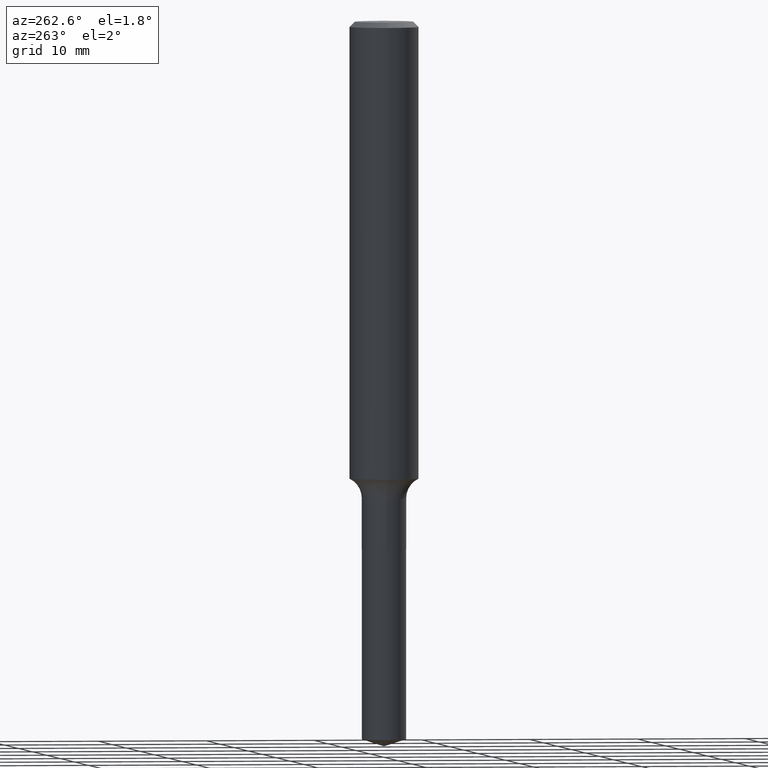
[diagram: clean part render]
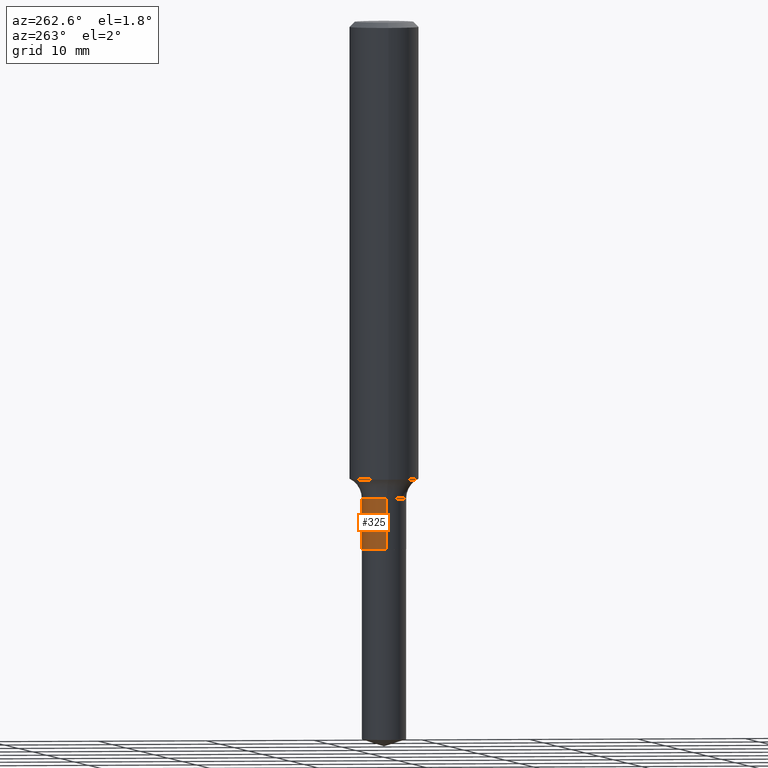
[diagram: same view with one face highlighted and labeled with its STEP entity id]
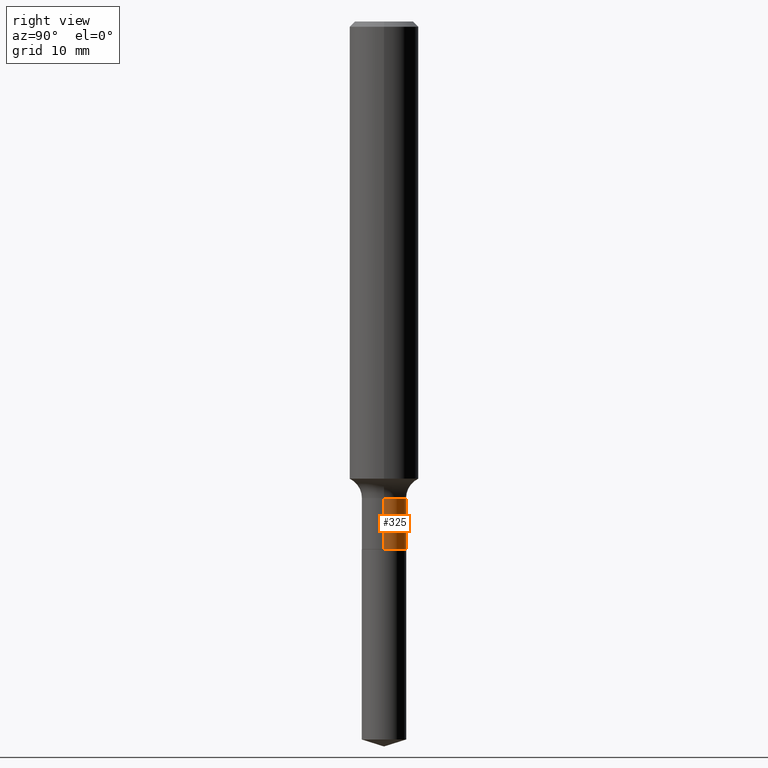
[diagram: same view with one face highlighted and labeled with its STEP entity id]
A machine part, auxiliary view. The second image highlights one B-rep face of the part: STEP entity #325.
A second angle (right view) of the same face is appended — the face is thin or edge-on in the first view.
In plain terms, the highlighted cylindrical surface (edge-blend (fillet) strip) has radius 2.0447 mm, axis along (-0, 0, 1).
Its self-contained STEP definition (entity closure, byte-faithful):
#9 = VERTEX_POINT ( 'NONE', #257 ) ;
#12 = EDGE_CURVE ( 'NONE', #9, #392, #176, .T. ) ;
#14 = EDGE_LOOP ( 'NONE', ( #23, #61, #59, #177 ) ) ;
#15 = DIRECTION ( 'NONE',  ( -2.445468806185136877E-29, 3.491481338843145188E-15, 1.000000000000000000 ) ) ;
#23 = ORIENTED_EDGE ( 'NONE', *, *, #218, .T. ) ;
#45 = LINE ( 'NONE', #383, #208 ) ;
#46 = CARTESIAN_POINT ( 'NONE',  ( 4.672068154216703208E-29, -6.670475097859829405E-15, -1.910500000000000087 ) ) ;
#59 = ORIENTED_EDGE ( 'NONE', *, *, #12, .F. ) ;
#61 = ORIENTED_EDGE ( 'NONE', *, *, #270, .T. ) ;
#71 = AXIS2_PLACEMENT_3D ( 'NONE', #46, #198, #348 ) ;
#90 = VERTEX_POINT ( 'NONE', #457 ) ;
#107 = CARTESIAN_POINT ( 'NONE',  ( -0.08049999999999998823, -5.776049893930784705E-15, -1.910500000000000087 ) ) ;
#117 = FACE_OUTER_BOUND ( 'NONE', #14, .T. ) ;
#127 = VERTEX_POINT ( 'NONE', #107 ) ;
#168 = DIRECTION ( 'NONE',  ( -2.445468806185136597E-29, 3.491481338843145583E-15, 1.000000000000000000 ) ) ;
#176 = CIRCLE ( 'NONE', #237, 0.08049999999999998823 ) ;
#177 = ORIENTED_EDGE ( 'NONE', *, *, #280, .F. ) ;
#198 = DIRECTION ( 'NONE',  ( -2.445468806185136597E-29, 3.491481338843145583E-15, 1.000000000000000000 ) ) ;
#208 = VECTOR ( 'NONE', #15, 39.37007874015748143 ) ;
#218 = EDGE_CURVE ( 'NONE', #90, #127, #311, .T. ) ;
#237 = AXIS2_PLACEMENT_3D ( 'NONE', #260, #415, #297 ) ;
#244 = DIRECTION ( 'NONE',  ( 1.000000000000000000, -6.982962677686266711E-15, 4.876176775795935232E-29 ) ) ;
#247 = CYLINDRICAL_SURFACE ( 'NONE', #305, 0.08049999999999998823 ) ;
#257 = CARTESIAN_POINT ( 'NONE',  ( 0.08049999999999998823, -6.587726990129244613E-15, -1.725800000000000001 ) ) ;
#260 = CARTESIAN_POINT ( 'NONE',  ( 4.220390065714308775E-29, -6.025598494575499954E-15, -1.725800000000000001 ) ) ;
#270 = EDGE_CURVE ( 'NONE', #127, #392, #307, .T. ) ;
#280 = EDGE_CURVE ( 'NONE', #90, #9, #45, .T. ) ;
#297 = DIRECTION ( 'NONE',  ( 1.000000000000000000, -6.982962677686267499E-15, 0.000000000000000000 ) ) ;
#305 = AXIS2_PLACEMENT_3D ( 'NONE', #349, #168, #244 ) ;
#307 = LINE ( 'NONE', #389, #420 ) ;
#311 = CIRCLE ( 'NONE', #71, 0.08049999999999998823 ) ;
#325 = ADVANCED_FACE ( 'NONE', ( #117 ), #247, .T. ) ;
#348 = DIRECTION ( 'NONE',  ( 1.000000000000000000, -6.982962677686267499E-15, 0.000000000000000000 ) ) ;
#349 = CARTESIAN_POINT ( 'NONE',  ( 0.000000000000000000, 0.000000000000000000, 0.000000000000000000 ) ) ;
#383 = CARTESIAN_POINT ( 'NONE',  ( 0.08049999999999998823, -5.621284955537443637E-16, 3.925322304515727276E-30 ) ) ;
#389 = CARTESIAN_POINT ( 'NONE',  ( -0.08049999999999998823, 5.719869022868805660E-16, -3.959742747655198507E-30 ) ) ;
#392 = VERTEX_POINT ( 'NONE', #468 ) ;
#415 = DIRECTION ( 'NONE',  ( -2.445468806185136597E-29, 3.491481338843145583E-15, 1.000000000000000000 ) ) ;
#420 = VECTOR ( 'NONE', #465, 39.37007874015748143 ) ;
#457 = CARTESIAN_POINT ( 'NONE',  ( 0.08049999999999998823, -7.232603593413574064E-15, -1.910500000000000087 ) ) ;
#465 = DIRECTION ( 'NONE',  ( -2.445468806185136877E-29, 3.491481338843145188E-15, 1.000000000000000000 ) ) ;
#468 = CARTESIAN_POINT ( 'NONE',  ( -0.08049999999999998823, -5.776049893930784705E-15, -1.725800000000000001 ) ) ;